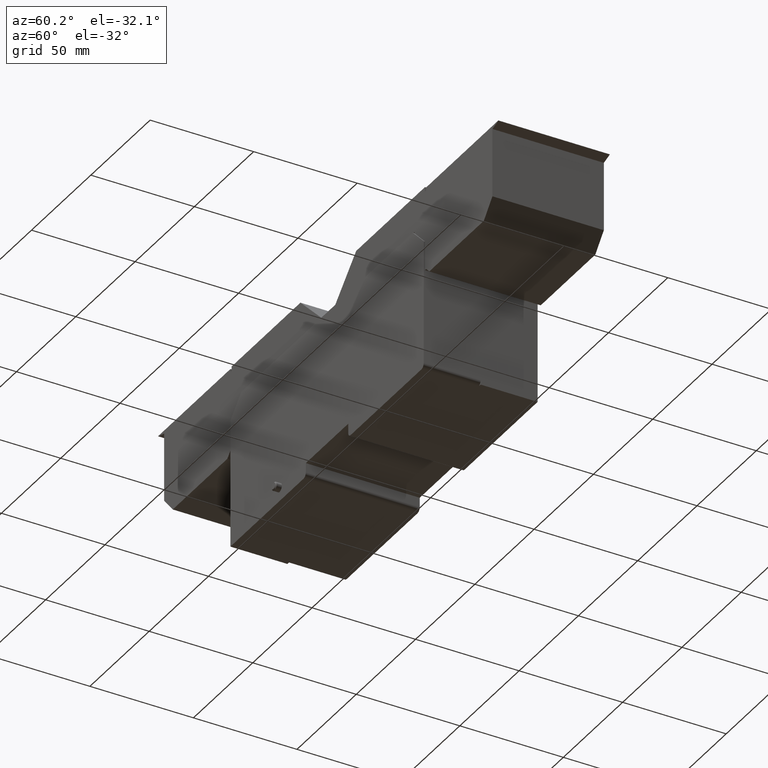
[diagram: clean part render]
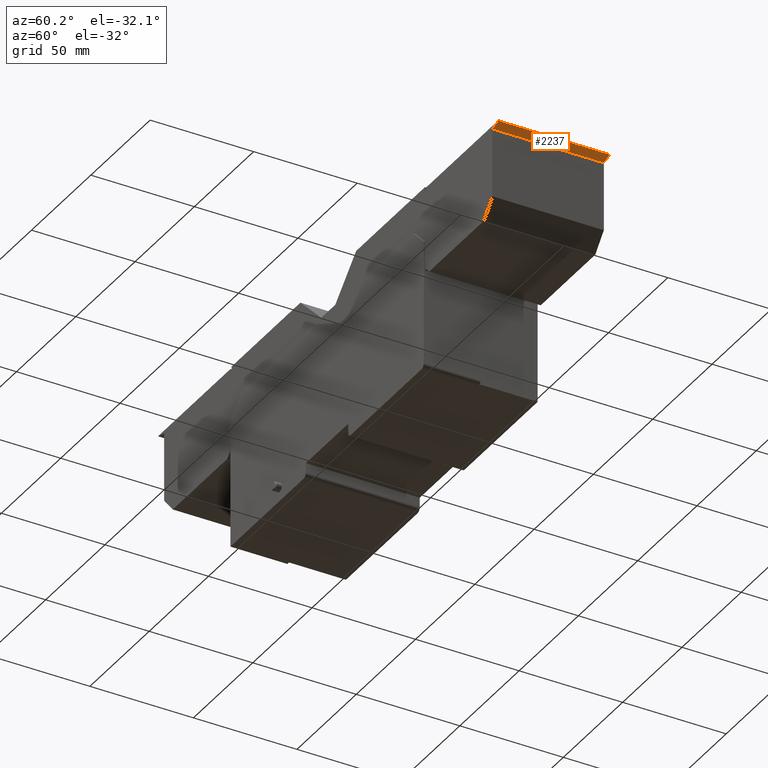
[diagram: same view with one face highlighted and labeled with its STEP entity id]
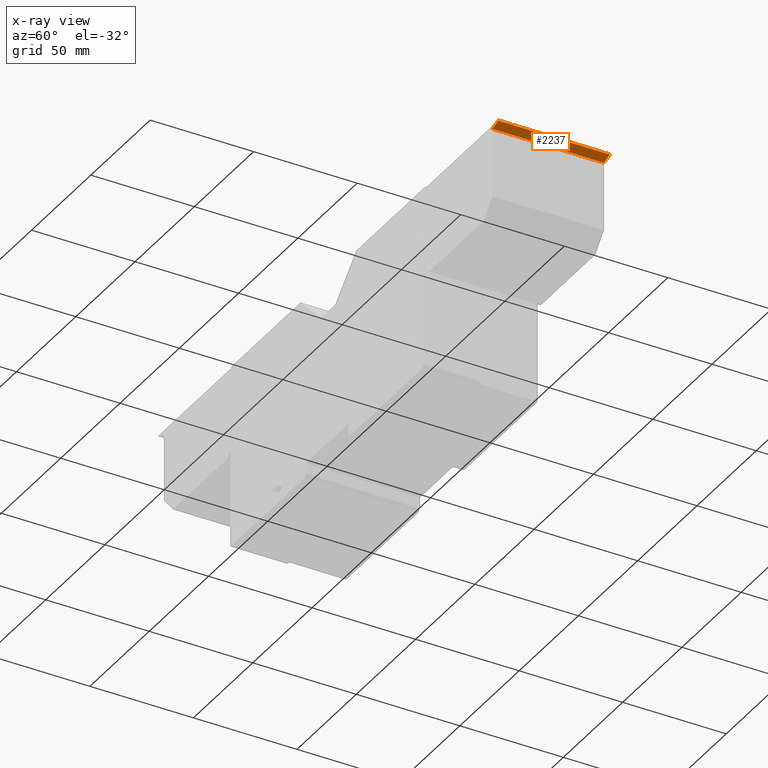
[diagram: x-ray of the same camera — body ghosted, the highlighted face saturated]
A machine part, auxiliary view. The second image highlights one B-rep face of the part: STEP entity #2237.
The next image is the same camera in x-ray: the body ghosted, the highlighted face saturated — about 0% of this face is hidden behind the body in this view.
In plain terms, the highlighted planar face has unit normal (0.2588, 0, -0.9659).
Its self-contained STEP definition (entity closure, byte-faithful):
#641=ORIENTED_EDGE('',*,*,#979,.F.);
#642=ORIENTED_EDGE('',*,*,#978,.F.);
#643=ORIENTED_EDGE('',*,*,#980,.T.);
#644=ORIENTED_EDGE('',*,*,#981,.T.);
#978=EDGE_CURVE('',#1190,#1189,#1420,.T.);
#979=EDGE_CURVE('',#1189,#1191,#1421,.T.);
#980=EDGE_CURVE('',#1190,#1192,#1422,.T.);
#981=EDGE_CURVE('',#1192,#1191,#1423,.T.);
#1189=VERTEX_POINT('',#3669);
#1190=VERTEX_POINT('',#3671);
#1191=VERTEX_POINT('',#3675);
#1192=VERTEX_POINT('',#3677);
#1420=LINE('',#3672,#1656);
#1421=LINE('',#3674,#1657);
#1422=LINE('',#3676,#1658);
#1423=LINE('',#3678,#1659);
#1656=VECTOR('',#3040,1000.);
#1657=VECTOR('',#3043,1000.);
#1658=VECTOR('',#3044,1000.);
#1659=VECTOR('',#3045,1000.);
#1836=EDGE_LOOP('',(#641,#642,#643,#644));
#2008=FACE_BOUND('',#1836,.T.);
#2107=PLANE('',#2450);
#2237=ADVANCED_FACE('',(#2008),#2107,.T.);
#2450=AXIS2_PLACEMENT_3D('',#3673,#3041,#3042);
#3040=DIRECTION('',(0.,-1.,0.));
#3041=DIRECTION('',(0.25881904510252,0.,-0.965925826289068));
#3042=DIRECTION('',(-0.965925826289068,0.,-0.25881904510252));
#3043=DIRECTION('',(0.965925826289068,0.,0.25881904510252));
#3044=DIRECTION('',(0.965925826289068,0.,0.25881904510252));
#3045=DIRECTION('',(0.,-1.,0.));
#3669=CARTESIAN_POINT('',(138.4,0.6,54.9099999999995));
#3671=CARTESIAN_POINT('',(138.4,54.4,54.9099999999995));
#3672=CARTESIAN_POINT('',(138.4,54.4,54.9099999999995));
#3673=CARTESIAN_POINT('',(138.4,54.4,54.9099999999995));
#3674=CARTESIAN_POINT('',(138.4,0.6,54.9099999999995));
#3675=CARTESIAN_POINT('',(143.4,0.6,56.2497459621551));
#3676=CARTESIAN_POINT('',(138.4,54.4,54.9099999999995));
#3677=CARTESIAN_POINT('',(143.4,54.4,56.2497459621551));
#3678=CARTESIAN_POINT('',(143.4,54.4,56.2497459621551));